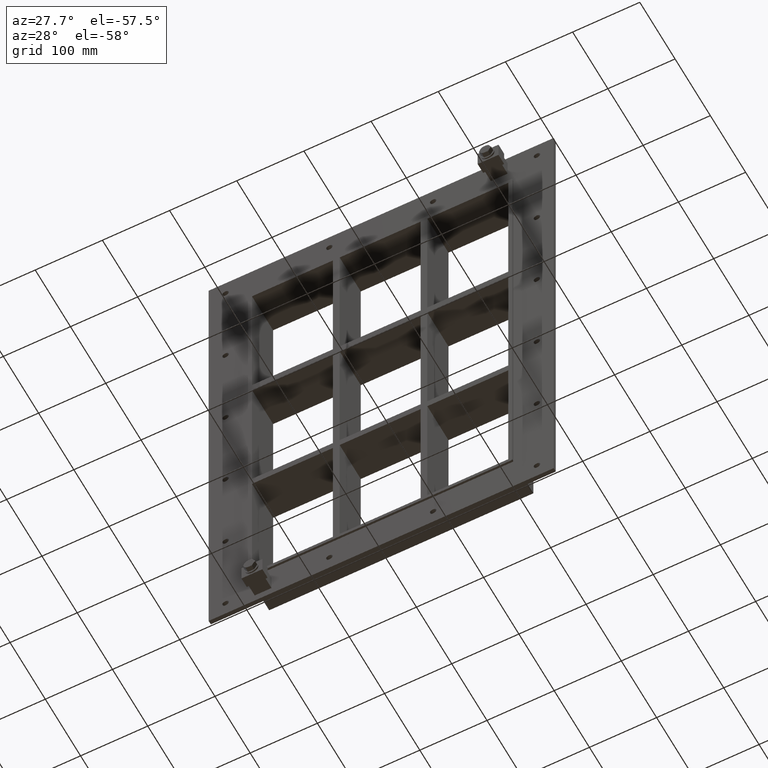
[diagram: clean part render]
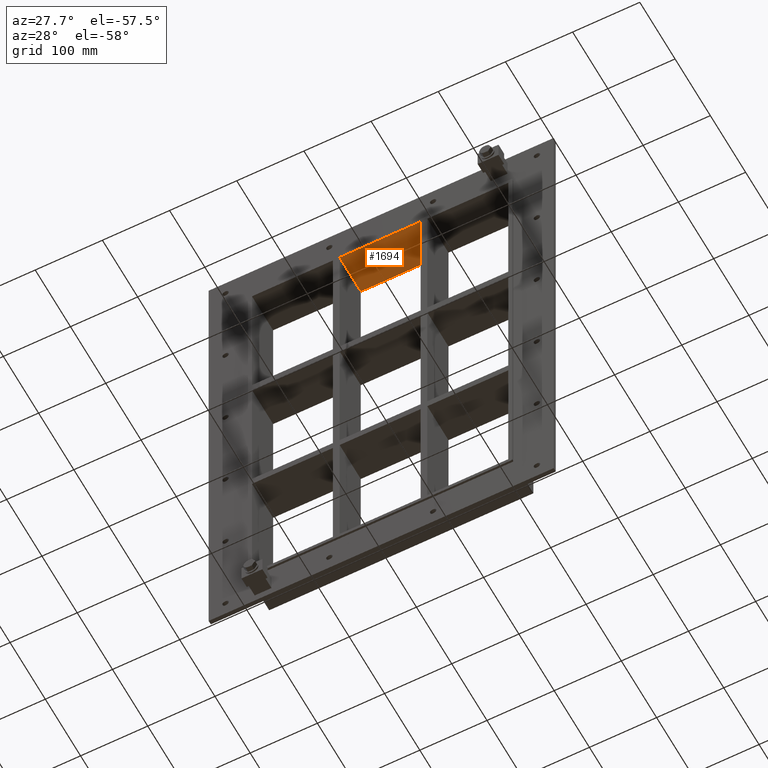
[diagram: same view with one face highlighted and labeled with its STEP entity id]
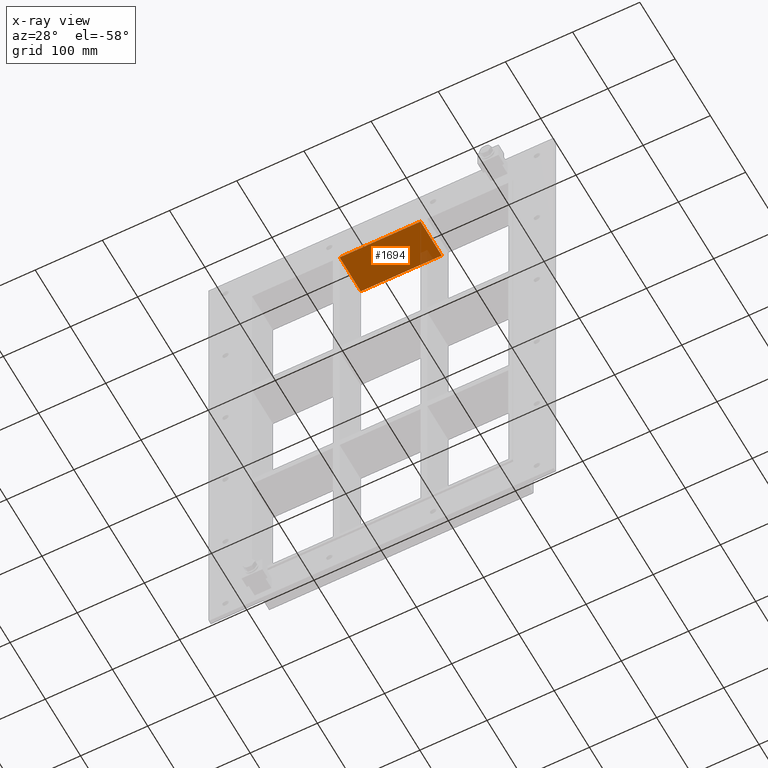
[diagram: x-ray of the same camera — body ghosted, the highlighted face saturated]
A machine part, auxiliary view. The second image highlights one B-rep face of the part: STEP entity #1694.
The next image is the same camera in x-ray: the body ghosted, the highlighted face saturated — about 3% of this face is hidden behind the body in this view.
In plain terms, the highlighted planar face has unit normal (0, 0, 1).
Its self-contained STEP definition (entity closure, byte-faithful):
#855=CARTESIAN_POINT('',(60.249999999999631,-3.0,339.00000000000006));
#856=VERTEX_POINT('',#855);
#863=CARTESIAN_POINT('',(60.249999999999631,57.0,339.00000000000006));
#864=VERTEX_POINT('',#863);
#865=CARTESIAN_POINT('',(60.249999999999631,57.000000000000007,339.00000000000011));
#866=DIRECTION('',(0.0,-1.0,0.0));
#867=VECTOR('',#866,60.000000000000007);
#868=LINE('',#865,#867);
#869=EDGE_CURVE('',#864,#856,#868,.T.);
#979=CARTESIAN_POINT('',(-60.249999999996362,57.0,339.00000000000006));
#980=VERTEX_POINT('',#979);
#987=CARTESIAN_POINT('',(-60.249999999996362,-3.0,339.00000000000006));
#988=VERTEX_POINT('',#987);
#989=CARTESIAN_POINT('',(-60.249999999996362,-3.0,339.00000000000011));
#990=DIRECTION('',(0.0,1.0,0.0));
#991=VECTOR('',#990,60.000000000000007);
#992=LINE('',#989,#991);
#993=EDGE_CURVE('',#988,#980,#992,.T.);
#1091=CARTESIAN_POINT('',(60.249999999999645,57.0,339.00000000000011));
#1092=DIRECTION('',(-1.0,0.0,0.0));
#1093=VECTOR('',#1092,120.49999999999601);
#1094=LINE('',#1091,#1093);
#1095=EDGE_CURVE('',#864,#980,#1094,.T.);
#1533=CARTESIAN_POINT('',(-60.249999999996362,-3.0,339.00000000000011));
#1534=DIRECTION('',(1.0,0.0,0.0));
#1535=VECTOR('',#1534,120.49999999999601);
#1536=LINE('',#1533,#1535);
#1537=EDGE_CURVE('',#988,#856,#1536,.T.);
#1683=CARTESIAN_POINT('',(-190.75000000000003,0.0,339.00000000000011));
#1684=DIRECTION('',(0.0,0.0,1.0));
#1685=DIRECTION('',(1.0,0.0,0.0));
#1686=AXIS2_PLACEMENT_3D('',#1683,#1684,#1685);
#1687=PLANE('',#1686);
#1688=ORIENTED_EDGE('',*,*,#869,.T.);
#1689=ORIENTED_EDGE('',*,*,#1537,.F.);
#1690=ORIENTED_EDGE('',*,*,#993,.T.);
#1691=ORIENTED_EDGE('',*,*,#1095,.F.);
#1692=EDGE_LOOP('',(#1688,#1689,#1690,#1691));
#1693=FACE_OUTER_BOUND('',#1692,.T.);
#1694=ADVANCED_FACE('',(#1693),#1687,.F.);